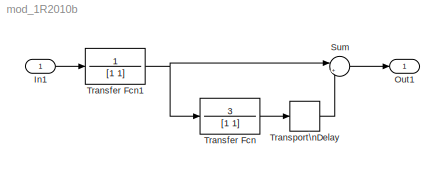
MODEL mod_1R2010b
KIND model
BLOCK [Inport] In1
  IconDisplay = Port number
  SID = 2
BLOCK [Outport] Out1
  IconDisplay = Port number
  SID = 1
BLOCK [Sum] Sum
  IconShape = round
  InputSameDT = off
  Inputs = |++
  OutDataTypeStr = Inherit: Inherit via internal rule
  Ports = [2, 1]
  SID = 3
  SaturateOnIntegerOverflow = off
BLOCK [TransferFcn] Transfer Fcn
  Denominator = [1 1]
  Numerator = 3
  SID = 4
BLOCK [TransferFcn] Transfer Fcn1
  Denominator = [1 1]
  Numerator = 1
  SID = 5
BLOCK [TransportDelay] Transport\nDelay
  Ports = [1, 1]
  SID = 6
LINE In1:1 -> Transfer Fcn1:1
LINE Sum:1 -> Out1:1
NET Transfer Fcn1:1 -> Sum:1, Transfer Fcn:1
LINE Transfer Fcn:1 -> Transport\nDelay:1
LINE Transport\nDelay:1 -> Sum:2
note: NET lines group one-source signal fan-out (src -> all destinations, sorted); 1:1 wires keep LINE
